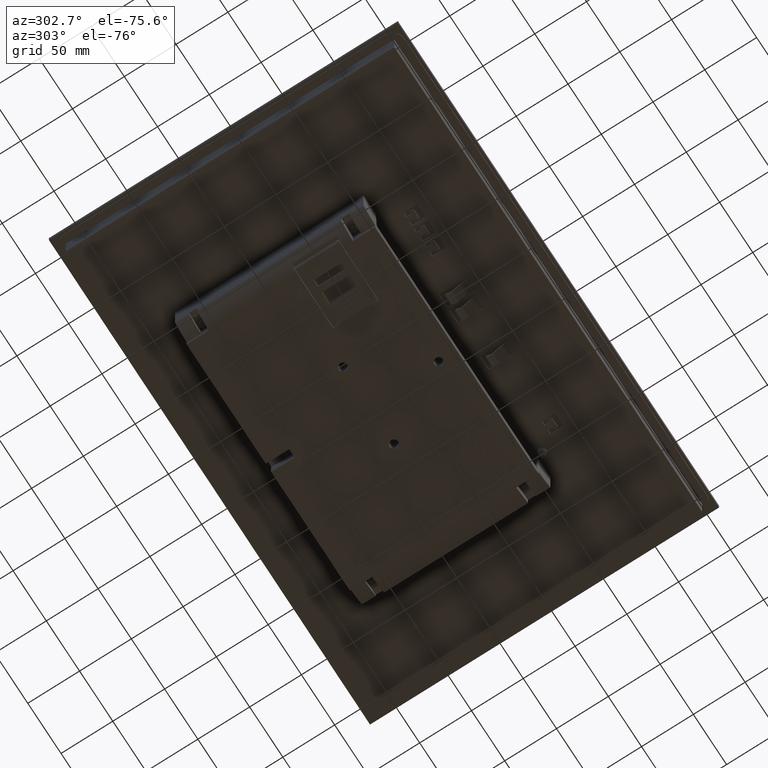
[diagram: clean part render]
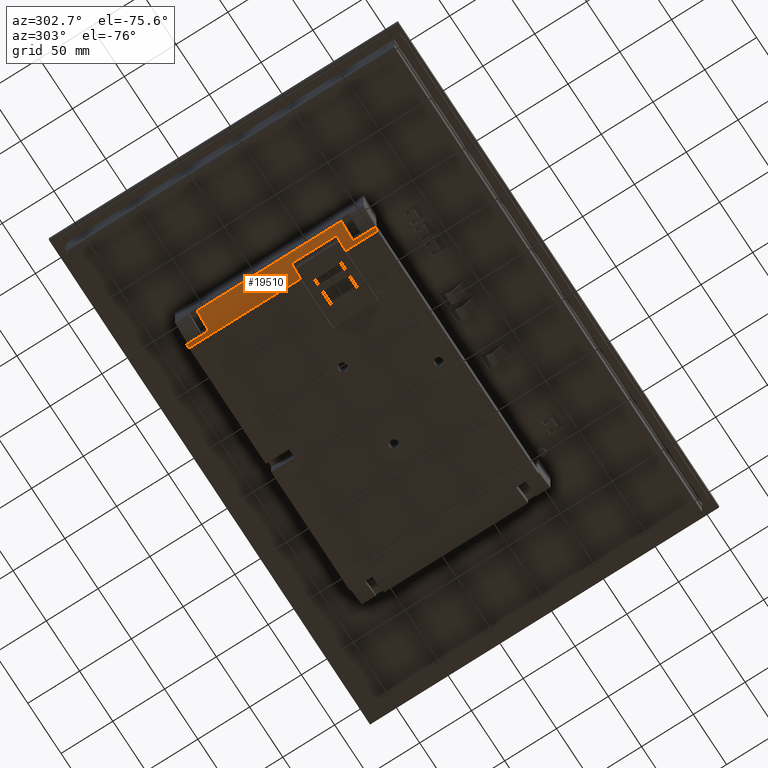
[diagram: same view with one face highlighted and labeled with its STEP entity id]
A machine part, auxiliary view. The second image highlights one B-rep face of the part: STEP entity #19510.
In plain terms, the highlighted cylindrical surface (partial cylindrical patch) has radius 60 mm, axis along (0, -1, 0).
Its self-contained STEP definition (entity closure, byte-faithful):
#3932=LINE('',#66143,#9268);
#3933=LINE('',#66147,#9269);
#3934=LINE('',#66151,#9270);
#3935=LINE('',#66155,#9271);
#3936=LINE('',#66159,#9272);
#3937=LINE('',#66163,#9273);
#9268=VECTOR('',#54610,1.);
#9269=VECTOR('',#54613,1.);
#9270=VECTOR('',#54616,1.);
#9271=VECTOR('',#54619,1.);
#9272=VECTOR('',#54622,1.);
#9273=VECTOR('',#54625,1.);
#14711=FACE_OUTER_BOUND('',#23183,.T.);
#19510=ADVANCED_FACE('',(#14711),#22196,.T.);
#22196=CYLINDRICAL_SURFACE('',#51009,59.9999932181805);
#23183=EDGE_LOOP('',(#26925,#26926,#26927,#26928,#26929,#26930,#26931,#26932,
#26933,#26934,#26935,#26936,#26937));
#26925=ORIENTED_EDGE('',*,*,#44093,.F.);
#26926=ORIENTED_EDGE('',*,*,#44094,.F.);
#26927=ORIENTED_EDGE('',*,*,#44095,.F.);
#26928=ORIENTED_EDGE('',*,*,#44096,.T.);
#26929=ORIENTED_EDGE('',*,*,#44097,.T.);
#26930=ORIENTED_EDGE('',*,*,#44098,.F.);
#26931=ORIENTED_EDGE('',*,*,#44099,.F.);
#26932=ORIENTED_EDGE('',*,*,#44100,.F.);
#26933=ORIENTED_EDGE('',*,*,#44101,.F.);
#26934=ORIENTED_EDGE('',*,*,#44102,.F.);
#26935=ORIENTED_EDGE('',*,*,#44103,.F.);
#26936=ORIENTED_EDGE('',*,*,#44104,.T.);
#26937=ORIENTED_EDGE('',*,*,#44105,.F.);
#39547=VERTEX_POINT('',#66141);
#39548=VERTEX_POINT('',#66142);
#39549=VERTEX_POINT('',#66144);
#39550=VERTEX_POINT('',#66146);
#39551=VERTEX_POINT('',#66148);
#39552=VERTEX_POINT('',#66150);
#39553=VERTEX_POINT('',#66152);
#39554=VERTEX_POINT('',#66154);
#39555=VERTEX_POINT('',#66156);
#39556=VERTEX_POINT('',#66158);
#39557=VERTEX_POINT('',#66160);
#39558=VERTEX_POINT('',#66162);
#39559=VERTEX_POINT('',#66164);
#44093=EDGE_CURVE('',#39547,#39548,#50381,.T.);
#44094=EDGE_CURVE('',#39549,#39547,#3932,.T.);
#44095=EDGE_CURVE('',#39550,#39549,#50382,.T.);
#44096=EDGE_CURVE('',#39550,#39551,#3933,.T.);
#44097=EDGE_CURVE('',#39551,#39552,#50383,.T.);
#44098=EDGE_CURVE('',#39553,#39552,#3934,.T.);
#44099=EDGE_CURVE('',#39554,#39553,#50384,.T.);
#44100=EDGE_CURVE('',#39555,#39554,#3935,.T.);
#44101=EDGE_CURVE('',#39556,#39555,#50385,.T.);
#44102=EDGE_CURVE('',#39557,#39556,#3936,.T.);
#44103=EDGE_CURVE('',#39558,#39557,#50386,.T.);
#44104=EDGE_CURVE('',#39558,#39559,#3937,.T.);
#44105=EDGE_CURVE('',#39548,#39559,#50387,.T.);
#50381=CIRCLE('',#51002,59.9999932181805);
#50382=CIRCLE('',#51003,59.9999932181805);
#50383=CIRCLE('',#51004,59.9999932181805);
#50384=CIRCLE('',#51005,59.9999932181805);
#50385=CIRCLE('',#51006,59.9999932181805);
#50386=CIRCLE('',#51007,59.9999932181805);
#50387=CIRCLE('',#51008,59.9999932181805);
#51002=AXIS2_PLACEMENT_3D('',#66140,#54608,#54609);
#51003=AXIS2_PLACEMENT_3D('',#66145,#54611,#54612);
#51004=AXIS2_PLACEMENT_3D('',#66149,#54614,#54615);
#51005=AXIS2_PLACEMENT_3D('',#66153,#54617,#54618);
#51006=AXIS2_PLACEMENT_3D('',#66157,#54620,#54621);
#51007=AXIS2_PLACEMENT_3D('',#66161,#54623,#54624);
#51008=AXIS2_PLACEMENT_3D('',#66165,#54626,#54627);
#51009=AXIS2_PLACEMENT_3D('',#66166,#54628,#54629);
#54608=DIRECTION('',(7.50595661958117E-010,1.,7.76097724297701E-035));
#54609=DIRECTION('',(-1.,7.50595677464654E-010,0.));
#54610=DIRECTION('',(0.,-1.,0.));
#54611=DIRECTION('',(-7.50595661958117E-010,-1.,0.));
#54612=DIRECTION('',(1.,-7.50595677464654E-010,0.));
#54613=DIRECTION('',(0.,1.,0.));
#54614=DIRECTION('',(0.,-1.,0.));
#54615=DIRECTION('',(-1.,0.,1.73472367205319E-016));
#54616=DIRECTION('',(0.,1.,0.));
#54617=DIRECTION('',(0.,1.,0.));
#54618=DIRECTION('',(0.,0.,1.));
#54619=DIRECTION('',(0.,1.,0.));
#54620=DIRECTION('',(0.,-1.,0.));
#54621=DIRECTION('',(0.,0.,-1.));
#54622=DIRECTION('',(0.,1.,0.));
#54623=DIRECTION('',(0.,-1.,0.));
#54624=DIRECTION('',(0.,0.,1.));
#54625=DIRECTION('',(0.,1.,0.));
#54626=DIRECTION('',(6.38446580468553E-011,1.,0.));
#54627=DIRECTION('',(-1.,6.38446543780007E-011,0.));
#54628=DIRECTION('',(0.,1.,0.));
#54629=DIRECTION('',(0.,0.,1.));
#66140=CARTESIAN_POINT('',(108.586892071966,-17.8671099936479,-16.6008166148601));
#66141=CARTESIAN_POINT('',(133.244518449686,-17.8671100121557,-71.2999998592055));
#66142=CARTESIAN_POINT('',(128.213450344877,-17.8671100083794,-73.2999999814317));
#66143=CARTESIAN_POINT('',(133.244518449686,-143.61269807627,-71.2999998592056));
#66144=CARTESIAN_POINT('',(133.244518449686,25.6671099878443,-71.2999998592055));
#66145=CARTESIAN_POINT('',(108.586892071966,25.6671100063522,-16.6008166148601));
#66146=CARTESIAN_POINT('',(119.499982654763,25.6671099981608,-75.6));
#66147=CARTESIAN_POINT('',(119.499982654763,-143.61269807627,-75.6));
#66148=CARTESIAN_POINT('',(119.499982654763,56.38730192373,-75.6));
#66149=CARTESIAN_POINT('',(108.586892071966,56.38730192373,-16.6008166148601));
#66150=CARTESIAN_POINT('',(122.9744995459,56.38730192373,-74.8502452589052));
#66151=CARTESIAN_POINT('',(122.9744995459,-143.61269807627,-74.8502452589052));
#66152=CARTESIAN_POINT('',(122.9744995459,35.00470192373,-74.8502452589052));
#66153=CARTESIAN_POINT('',(108.586892071966,35.00470192373,-16.6008166148601));
#66154=CARTESIAN_POINT('',(140.487301923511,35.00470192373,-67.4177728153761));
#66155=CARTESIAN_POINT('',(140.487301923511,-143.61269807627,-67.4177728153761));
#66156=CARTESIAN_POINT('',(140.4873019237,-104.20470192373,-67.4177728152573));
#66157=CARTESIAN_POINT('',(108.586892071966,-104.20470192373,-16.6008166148601));
#66158=CARTESIAN_POINT('',(122.9744995459,-104.20470192373,-74.8502452589052));
#66159=CARTESIAN_POINT('',(122.9744995459,-143.61269807627,-74.8502452589052));
#66160=CARTESIAN_POINT('',(122.9744995459,-125.58730192373,-74.8502452589052));
#66161=CARTESIAN_POINT('',(108.586892071966,-125.58730192373,-16.6008166148601));
#66162=CARTESIAN_POINT('',(119.499982654763,-125.58730192373,-75.6));
#66163=CARTESIAN_POINT('',(119.499982654763,-143.61269807627,-75.6));
#66164=CARTESIAN_POINT('',(119.499982654763,-17.8671099983878,-75.6));
#66165=CARTESIAN_POINT('',(108.586892071966,-17.8671099976911,-16.6008166148601));
#66166=CARTESIAN_POINT('',(108.586892071966,-143.61269807627,-16.6008166148601));